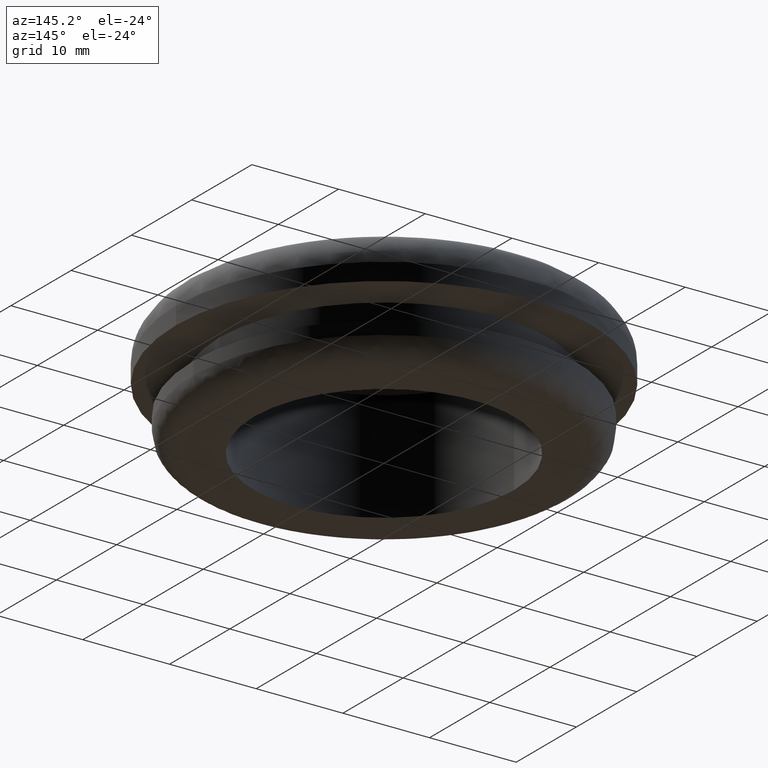
[diagram: clean part render]
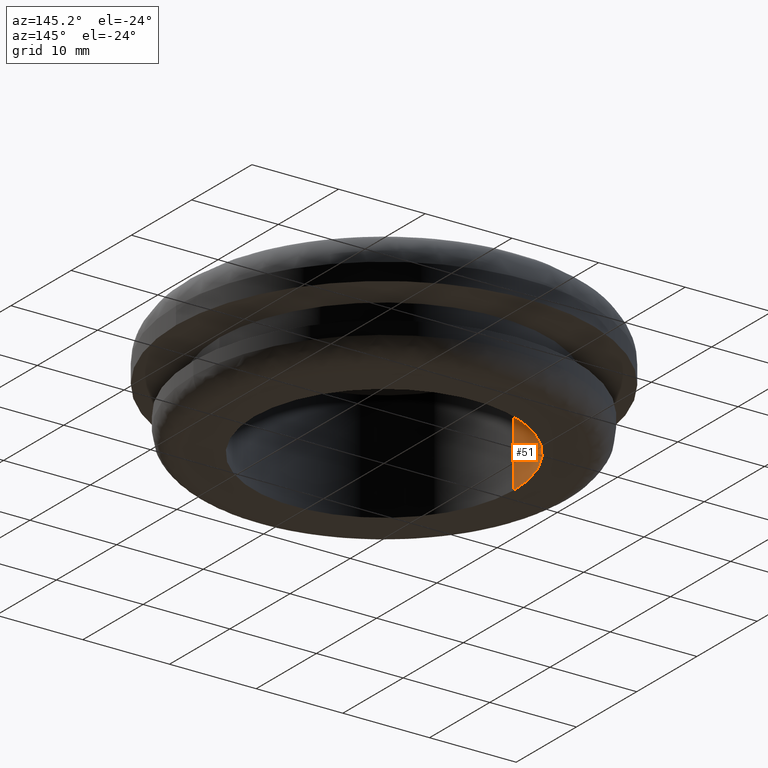
[diagram: same view with one face highlighted and labeled with its STEP entity id]
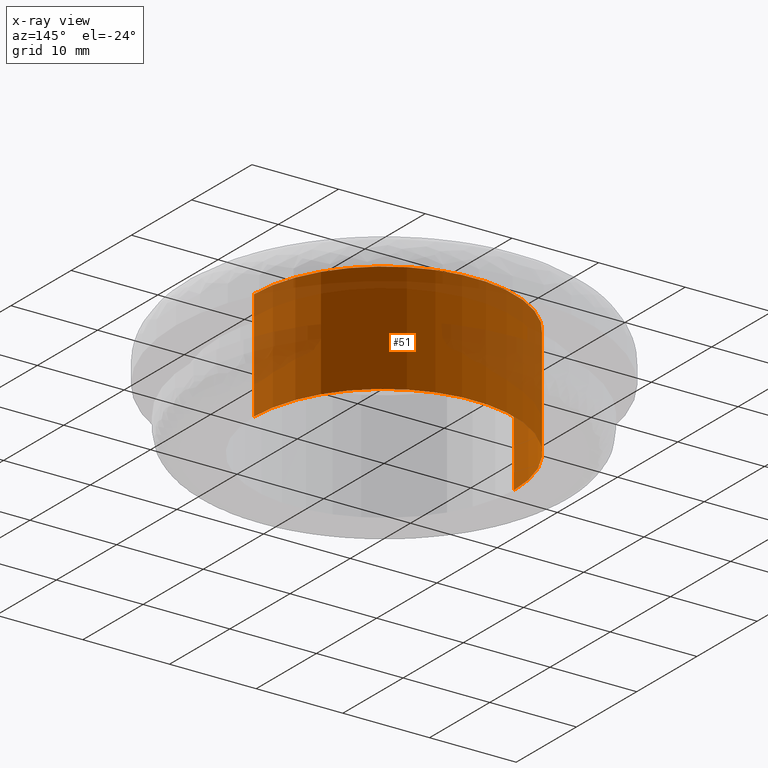
[diagram: x-ray of the same camera — body ghosted, the highlighted face saturated]
A machine part, auxiliary view. The second image highlights one B-rep face of the part: STEP entity #51.
The next image is the same camera in x-ray: the body ghosted, the highlighted face saturated — about 35% of this face is hidden behind the body in this view.
In plain terms, the highlighted cylindrical surface (partial cylindrical patch) has radius 15 mm, axis along (0, -0, 1).
Its self-contained STEP definition (entity closure, byte-faithful):
#51=ADVANCED_FACE('',(#183),#182,.F.);
#182=CYLINDRICAL_SURFACE('',#447,1.50000000000E+001);
#183=FACE_OUTER_BOUND('',#448,.T.);
#444=CARTESIAN_POINT('',(0.00000000000E+000,0.00000000000E+000,0.00000000000E+000));
#445=DIRECTION('',(0.00000000000E+000,-0.00000000000E+000,1.00000000000E+000));
#446=DIRECTION('',(1.00000000000E+000,-0.00000000000E+000,-0.00000000000E+000));
#447=AXIS2_PLACEMENT_3D('',#444,#445,#446);
#448=EDGE_LOOP('',(#690,#691,#692,#693));
#690=ORIENTED_EDGE('',*,*,#757,.T.);
#691=ORIENTED_EDGE('',*,*,#784,.T.);
#692=ORIENTED_EDGE('',*,*,#758,.F.);
#693=ORIENTED_EDGE('',*,*,#785,.F.);
#757=EDGE_CURVE('',#821,#820,#828,.T.);
#758=EDGE_CURVE('',#834,#835,#836,.T.);
#784=EDGE_CURVE('',#820,#835,#1012,.T.);
#785=EDGE_CURVE('',#821,#834,#1018,.T.);
#820=VERTEX_POINT('',#1160);
#821=VERTEX_POINT('',#1161);
#828=CIRCLE('',#1169,1.50000000000E+001);
#834=VERTEX_POINT('',#1170);
#835=VERTEX_POINT('',#1171);
#836=CIRCLE('',#1175,1.50000000000E+001);
#1012=(BOUNDED_CURVE() B_SPLINE_CURVE(1,(#1292,#1293),.UNSPECIFIED.,.F.,.F.) B_SPLINE_CURVE_WITH_KNOTS((2,2),(8.33333343261E-002,9.16666667006E-001),.UNSPECIFIED.) CURVE() GEOMETRIC_REPRESENTATION_ITEM() RATIONAL_B_SPLINE_CURVE((1.00000000000E+000,1.00000000000E+000)) REPRESENTATION_ITEM('') );
#1018=(BOUNDED_CURVE() B_SPLINE_CURVE(1,(#1294,#1295),.UNSPECIFIED.,.F.,.F.) B_SPLINE_CURVE_WITH_KNOTS((2,2),(8.33333333333E-002,9.16666666667E-001),.UNSPECIFIED.) CURVE() GEOMETRIC_REPRESENTATION_ITEM() RATIONAL_B_SPLINE_CURVE((7.50000000000E-001,7.50000000000E-001)) REPRESENTATION_ITEM('') );
#1160=CARTESIAN_POINT('',(1.50000000000E+001,1.77635683940E-015,-9.94759830064E-014));
#1161=CARTESIAN_POINT('',(-1.50000000000E+001,0.00000000000E+000,-9.94759830064E-014));
#1166=CARTESIAN_POINT('',(0.00000000000E+000,0.00000000000E+000,-9.94759830064E-014));
#1167=DIRECTION('',(-0.00000000000E+000,0.00000000000E+000,-1.00000000000E+000));
#1168=DIRECTION('',(-1.00000000000E+000,-1.22460635382E-016,0.00000000000E+000));
#1169=AXIS2_PLACEMENT_3D('',#1166,#1167,#1168);
#1170=CARTESIAN_POINT('',(-1.50000000000E+001,0.00000000000E+000,1.27000000000E+001));
#1171=CARTESIAN_POINT('',(1.50000000000E+001,1.77635683940E-015,1.27000000000E+001));
#1172=CARTESIAN_POINT('',(0.00000000000E+000,0.00000000000E+000,1.27000000000E+001));
#1173=DIRECTION('',(-0.00000000000E+000,0.00000000000E+000,-1.00000000000E+000));
#1174=DIRECTION('',(-1.00000000000E+000,-1.22460635382E-016,0.00000000000E+000));
#1175=AXIS2_PLACEMENT_3D('',#1172,#1173,#1174);
#1292=CARTESIAN_POINT('',(1.50000000000E+001,0.00000000000E+000,1.51293197970E-008));
#1293=CARTESIAN_POINT('',(1.50000000000E+001,0.00000000000E+000,1.27000000052E+001));
#1294=CARTESIAN_POINT('',(-1.50000000000E+001,0.00000000000E+000,-9.94759830064E-014));
#1295=CARTESIAN_POINT('',(-1.50000000000E+001,0.00000000000E+000,1.27000000000E+001));